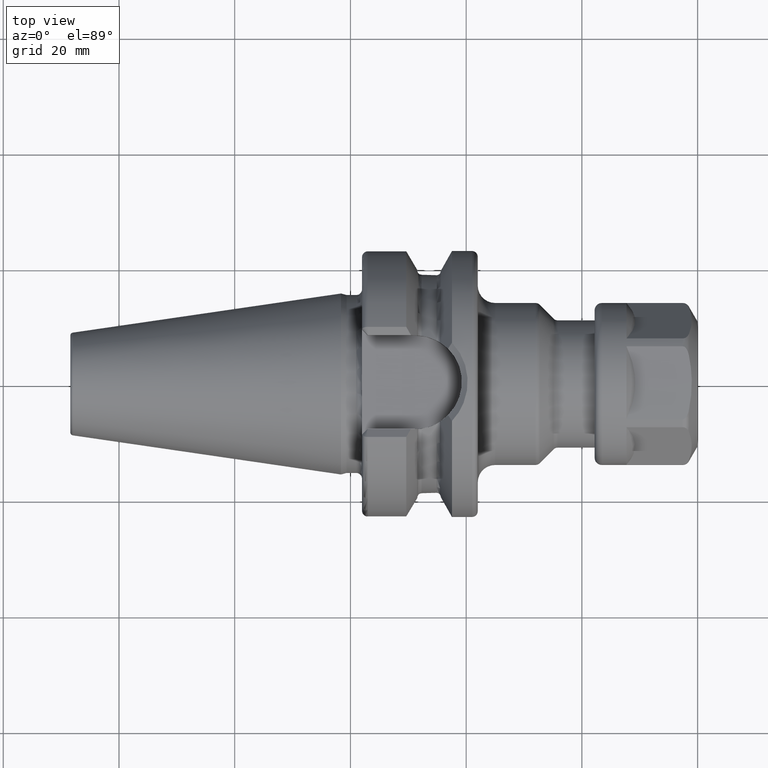
[diagram: clean part render]
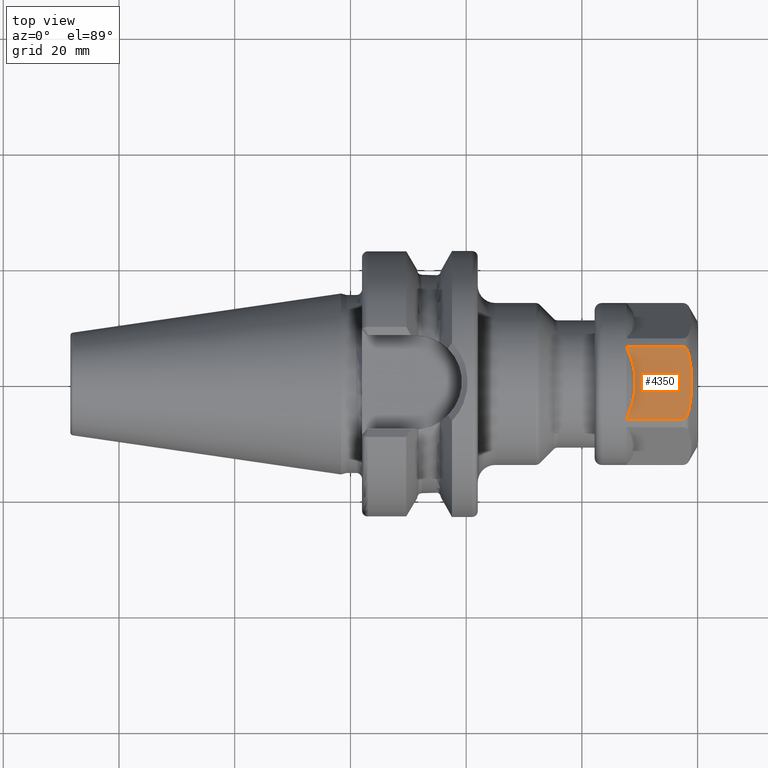
[diagram: same view with one face highlighted and labeled with its STEP entity id]
A machine part, top view. The second image highlights one B-rep face of the part: STEP entity #4350.
In plain terms, the highlighted planar face has unit normal (0, 0, -1).
Its self-contained STEP definition (entity closure, byte-faithful):
#3548=CARTESIAN_POINT('',(1.628445554338E1,-4.758216577669E0,1.25E1));
#3549=CARTESIAN_POINT('',(1.625780514735E1,-4.887968523483E0,1.25E1));
#3550=CARTESIAN_POINT('',(1.619635457926E1,-5.141602008187E0,1.25E1));
#3551=CARTESIAN_POINT('',(1.606561669937E1,-5.515629625230E0,1.25E1));
#3552=CARTESIAN_POINT('',(1.589737600801E1,-5.841380073054E0,1.25E1));
#3553=CARTESIAN_POINT('',(1.569295978880E1,-6.098496038599E0,1.25E1));
#3554=CARTESIAN_POINT('',(1.545738513995E1,-6.265053289239E0,1.25E1));
#3555=CARTESIAN_POINT('',(1.528945671766E1,-6.304760106459E0,1.25E1));
#3556=CARTESIAN_POINT('',(1.520192378865E1,-6.304760106459E0,1.25E1));
#3558=CARTESIAN_POINT('',(1.520192378865E1,6.304760106459E0,1.25E1));
#3559=CARTESIAN_POINT('',(1.529096662636E1,6.304760106459E0,1.25E1));
#3560=CARTESIAN_POINT('',(1.546146335283E1,6.263924243604E0,1.25E1));
#3561=CARTESIAN_POINT('',(1.570142638899E1,6.090799069305E0,1.25E1));
#3562=CARTESIAN_POINT('',(1.590512360841E1,5.828820593103E0,1.25E1));
#3563=CARTESIAN_POINT('',(1.607010427330E1,5.504238892291E0,1.25E1));
#3564=CARTESIAN_POINT('',(1.619774346523E1,5.136026796860E0,1.25E1));
#3565=CARTESIAN_POINT('',(1.625821277607E1,4.885983914320E0,1.25E1));
#3566=CARTESIAN_POINT('',(1.628445554338E1,4.758216577669E0,1.25E1));
#3701=CARTESIAN_POINT('',(1.628445554338E1,4.758216577669E0,1.25E1));
#3702=CARTESIAN_POINT('',(1.644888995402E1,3.957639929005E0,1.25E1));
#3703=CARTESIAN_POINT('',(1.670318968294E1,2.364269791047E0,1.25E1));
#3704=CARTESIAN_POINT('',(1.683288207547E1,-5.894560252867E-4,1.25E1));
#3705=CARTESIAN_POINT('',(1.670310415631E1,-2.364813039561E0,1.25E1));
#3706=CARTESIAN_POINT('',(1.644884551611E1,-3.957856282460E0,1.25E1));
#3707=CARTESIAN_POINT('',(1.628445554338E1,-4.758216577669E0,1.25E1));
#3829=CARTESIAN_POINT('',(6.999998791690E0,1.985136949503E-4,1.250497818744E1));
#3830=CARTESIAN_POINT('',(6.999995386559E0,1.083553461564E-1,1.250497818744E1));
#3831=CARTESIAN_POINT('',(7.011782444677E0,3.323389433546E-1,1.249768961517E1));
#3832=CARTESIAN_POINT('',(6.991282370716E0,6.947576581843E-1,1.250061906576E1));
#3833=CARTESIAN_POINT('',(6.965721899361E0,1.081326132470E0,1.249983412178E1));
#3834=CARTESIAN_POINT('',(6.922876192133E0,1.498035903408E0,1.250004444711E1));
#3835=CARTESIAN_POINT('',(6.861885981566E0,1.948281362830E0,1.249998808976E1));
#3836=CARTESIAN_POINT('',(6.778309802838E0,2.434572650865E0,1.250000319384E1));
#3837=CARTESIAN_POINT('',(6.667918248966E0,2.960298770043E0,1.249999913487E1));
#3838=CARTESIAN_POINT('',(6.525149902043E0,3.530593918696E0,1.250000026669E1));
#3839=CARTESIAN_POINT('',(6.344630001608E0,4.147368678958E0,1.249999979838E1));
#3840=CARTESIAN_POINT('',(6.120965968917E0,4.812010958299E0,1.250000053980E1));
#3841=CARTESIAN_POINT('',(5.848032343460E0,5.527653239183E0,1.249999804241E1));
#3842=CARTESIAN_POINT('',(5.629243339886E0,6.040163160491E0,1.250000420784E1));
#3843=CARTESIAN_POINT('',(5.510095954746E0,6.304759140730E0,1.250000420784E1));
#3845=DIRECTION('',(9.999999999999E-1,9.964366215769E-8,-4.341640402664E-7));
#3846=VECTOR('',#3845,9.691827833902E0);
#3847=CARTESIAN_POINT('',(5.510095954746E0,6.304759140730E0,1.250000420784E1));
#3848=LINE('',#3847,#3846);
#3849=DIRECTION('',(-1.E0,0.E0,0.E0));
#3850=VECTOR('',#3849,9.691824900384E0);
#3851=CARTESIAN_POINT('',(1.520192378865E1,-6.304760106459E0,1.25E1));
#3852=LINE('',#3851,#3850);
#3853=CARTESIAN_POINT('',(5.510098888263E0,-6.304760106459E0,1.25E1));
#3854=CARTESIAN_POINT('',(5.628608269067E0,-6.041581193405E0,1.25E1));
#3855=CARTESIAN_POINT('',(5.846410978598E0,-5.531542850544E0,1.249999999528E1));
#3856=CARTESIAN_POINT('',(6.118668645789E0,-4.818319414009E0,1.250000001653E1));
#3857=CARTESIAN_POINT('',(6.342154539409E0,-4.155168896739E0,1.249999993859E1));
#3858=CARTESIAN_POINT('',(6.522846521565E0,-3.539040019302E0,1.250000022912E1));
#3859=CARTESIAN_POINT('',(6.666026914419E0,-2.968541134184E0,1.249999914493E1));
#3860=CARTESIAN_POINT('',(6.776957979542E0,-2.441689317017E0,1.250000319115E1));
#3861=CARTESIAN_POINT('',(6.860833699321E0,-1.955099057778E0,1.249998809048E1));
#3862=CARTESIAN_POINT('',(6.922079179828E0,-1.504758646512E0,1.250004444692E1));
#3863=CARTESIAN_POINT('',(6.965227124505E0,-1.087199393790E0,1.249983412183E1));
#3864=CARTESIAN_POINT('',(6.991082238877E0,-6.988464250822E-1,
1.250061906575E1));
#3865=CARTESIAN_POINT('',(7.011784163695E0,-3.332410705653E-1,
1.249768961517E1));
#3866=CARTESIAN_POINT('',(7.000002200654E0,-1.080800986362E-1,
1.250497818744E1));
#3867=CARTESIAN_POINT('',(6.999998791690E0,1.985136949503E-4,1.250497818744E1));
#3916=VERTEX_POINT('',#3701);
#3917=VERTEX_POINT('',#3707);
#3928=VERTEX_POINT('',#3556);
#3929=VERTEX_POINT('',#3558);
#3958=CARTESIAN_POINT('',(5.510019594413E0,-6.304795814642E0,1.250007080131E1));
#3959=CARTESIAN_POINT('',(5.510019594413E0,6.304795289710E0,1.250006976046E1));
#3960=VERTEX_POINT('',#3958);
#3961=VERTEX_POINT('',#3959);
#3963=VERTEX_POINT('',#3867);
#4334=CARTESIAN_POINT('',(1.78E1,-7.216878364870E0,1.25E1));
#4335=DIRECTION('',(0.E0,0.E0,-1.E0));
#4336=DIRECTION('',(0.E0,1.E0,0.E0));
#4337=AXIS2_PLACEMENT_3D('',#4334,#4335,#4336);
#4338=PLANE('',#4337);
#4340=ORIENTED_EDGE('',*,*,#4339,.T.);
#4341=ORIENTED_EDGE('',*,*,#4285,.T.);
#4342=ORIENTED_EDGE('',*,*,#4141,.T.);
#4343=ORIENTED_EDGE('',*,*,#4234,.T.);
#4344=ORIENTED_EDGE('',*,*,#4129,.T.);
#4345=ORIENTED_EDGE('',*,*,#4289,.T.);
#4347=ORIENTED_EDGE('',*,*,#4346,.T.);
#4348=EDGE_LOOP('',(#4340,#4341,#4342,#4343,#4344,#4345,#4347));
#4349=FACE_OUTER_BOUND('',#4348,.F.);
#4350=ADVANCED_FACE('',(#4349),#4338,.F.);
#3557=B_SPLINE_CURVE_WITH_KNOTS('',3,(#3548,#3549,#3550,#3551,#3552,#3553,#3554,
#3555,#3556),.UNSPECIFIED.,.F.,.F.,(4,1,1,1,1,1,4),(0.E0,1.666666666667E-1,
3.333333333333E-1,5.E-1,6.666666666667E-1,8.333333333333E-1,1.E0),
.UNSPECIFIED.);
#3567=B_SPLINE_CURVE_WITH_KNOTS('',3,(#3558,#3559,#3560,#3561,#3562,#3563,#3564,
#3565,#3566),.UNSPECIFIED.,.F.,.F.,(4,1,1,1,1,1,4),(0.E0,1.666666666667E-1,
3.333333333333E-1,5.E-1,6.666666666667E-1,8.333333333333E-1,1.E0),
.UNSPECIFIED.);
#3708=B_SPLINE_CURVE_WITH_KNOTS('',3,(#3701,#3702,#3703,#3704,#3705,#3706,
#3707),.UNSPECIFIED.,.F.,.F.,(4,1,1,1,4),(0.E0,2.5E-1,5.E-1,7.5E-1,1.E0),
.UNSPECIFIED.);
#3844=B_SPLINE_CURVE_WITH_KNOTS('',3,(#3829,#3830,#3831,#3832,#3833,#3834,#3835,
#3836,#3837,#3838,#3839,#3840,#3841,#3842,#3843),.UNSPECIFIED.,.F.,.F.,(4,1,1,1,
1,1,1,1,1,1,1,1,4),(0.E0,8.333333333333E-2,1.666666666667E-1,2.5E-1,
3.333333333333E-1,4.166666666667E-1,5.E-1,5.833333333333E-1,6.666666666667E-1,
7.5E-1,8.333333333333E-1,9.166666666667E-1,1.E0),.UNSPECIFIED.);
#3868=B_SPLINE_CURVE_WITH_KNOTS('',3,(#3853,#3854,#3855,#3856,#3857,#3858,#3859,
#3860,#3861,#3862,#3863,#3864,#3865,#3866,#3867),.UNSPECIFIED.,.F.,.F.,(4,1,1,1,
1,1,1,1,1,1,1,1,4),(0.E0,8.333333333333E-2,1.666666666667E-1,2.5E-1,
3.333333333333E-1,4.166666666667E-1,5.E-1,5.833333333333E-1,6.666666666667E-1,
7.5E-1,8.333333333333E-1,9.166666666667E-1,1.E0),.UNSPECIFIED.);
#4129=EDGE_CURVE('',#3917,#3928,#3557,.T.);
#4141=EDGE_CURVE('',#3929,#3916,#3567,.T.);
#4234=EDGE_CURVE('',#3916,#3917,#3708,.T.);
#4285=EDGE_CURVE('',#3961,#3929,#3848,.T.);
#4289=EDGE_CURVE('',#3928,#3960,#3852,.T.);
#4339=EDGE_CURVE('',#3963,#3961,#3844,.T.);
#4346=EDGE_CURVE('',#3960,#3963,#3868,.T.);